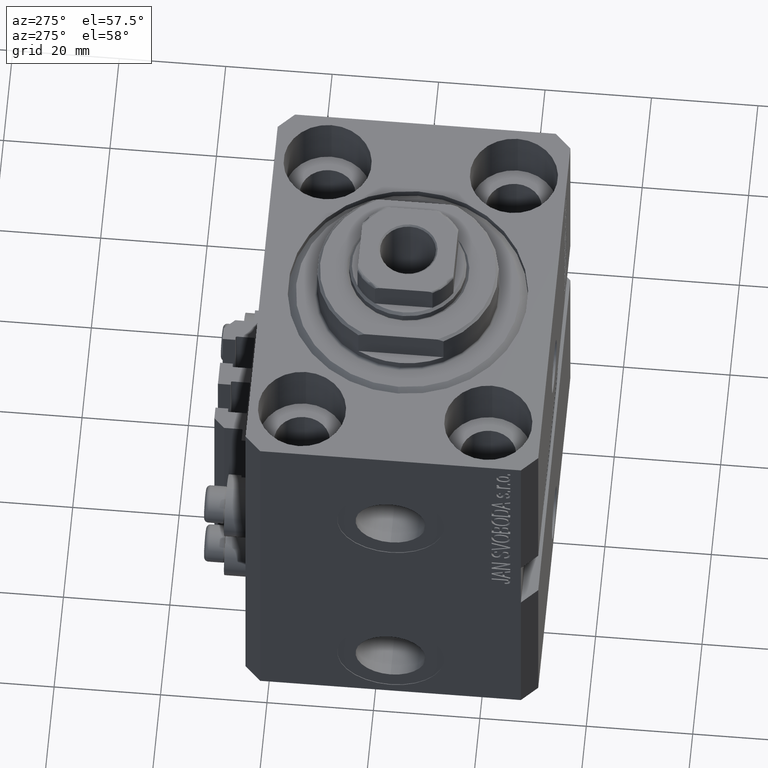
[diagram: clean part render]
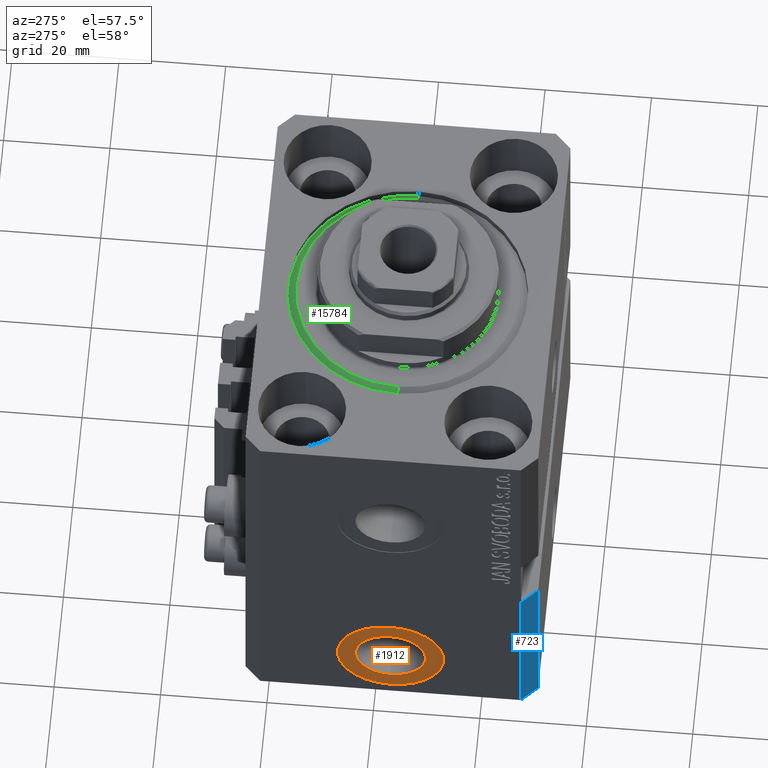
[diagram: same view with three faces highlighted in distinct colors, each labeled with its STEP entity id]
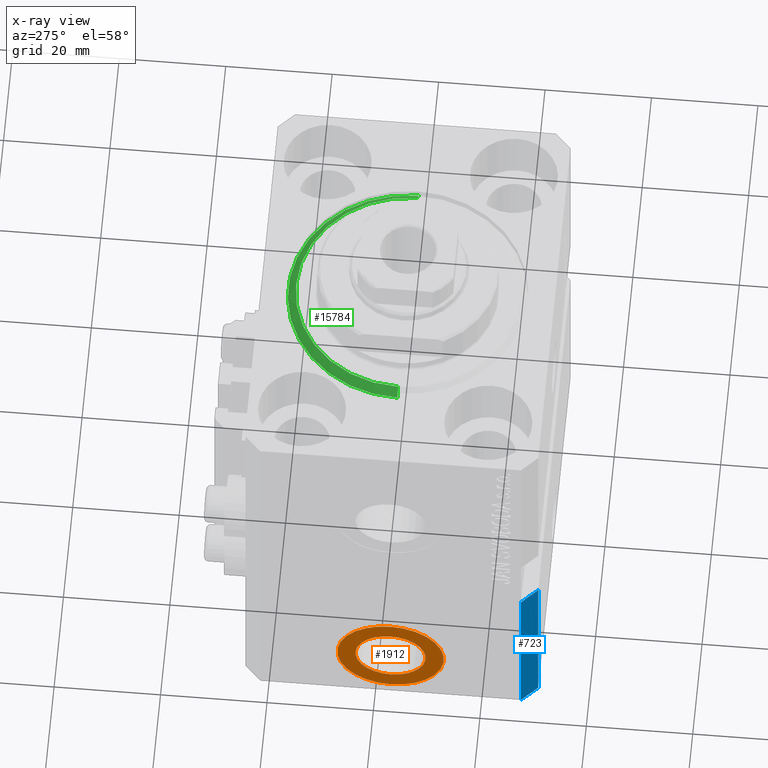
[diagram: x-ray of the same camera — body ghosted, the three highlighted faces saturated]
A machine part, auxiliary view with three faces highlighted in distinct colors.
The next image is the same camera in x-ray (body ghosted, the three faces saturated) — at least one of them is partly hidden behind the body in this view.
Their STEP definitions:

[orange] entity #1912 — the highlighted planar face has unit normal (-1, 0, 0).
#1368 = EDGE_CURVE ( 'NONE', #37670, #16966, #34739, .T. ) ;
#1673 = ORIENTED_EDGE ( 'NONE', *, *, #1368, .T. ) ;
#1912 = ADVANCED_FACE ( 'NONE', ( #27520, #41976 ), #42667, .T. ) ;
#5345 = AXIS2_PLACEMENT_3D ( 'NONE', #38890, #6460, #39116 ) ;
#5402 = CARTESIAN_POINT ( 'NONE',  ( -37.39999999999999147, -7.102951435054649637E-15, -78.00000000000000000 ) ) ;
#6460 = DIRECTION ( 'NONE',  ( -1.000000000000000000, 0.000000000000000000, 0.000000000000000000 ) ) ;
#10215 = DIRECTION ( 'NONE',  ( -1.000000000000000000, 0.000000000000000000, 0.000000000000000000 ) ) ;
#10243 = EDGE_CURVE ( 'NONE', #28677, #27141, #45432, .T. ) ;
#12095 = CIRCLE ( 'NONE', #46152, 9.999999999999994671 ) ;
#12423 = CARTESIAN_POINT ( 'NONE',  ( -37.39999999999999147, -7.521780640363043654E-15, -74.58000000000001251 ) ) ;
#13214 = CARTESIAN_POINT ( 'NONE',  ( -37.39999999999999147, -8.327598234202001119E-15, -61.42000000000000171 ) ) ;
#13764 = CARTESIAN_POINT ( 'NONE',  ( -37.39999999999999147, -8.327598234202001119E-15, -68.00000000000000000 ) ) ;
#14462 = DIRECTION ( 'NONE',  ( 0.000000000000000000, 0.000000000000000000, 1.000000000000000000 ) ) ;
#16966 = VERTEX_POINT ( 'NONE', #5402 ) ;
#21105 = CARTESIAN_POINT ( 'NONE',  ( -37.39999999999999147, -8.327598234202001119E-15, -68.00000000000000000 ) ) ;
#22566 = EDGE_LOOP ( 'NONE', ( #36646, #36076 ) ) ;
#22657 = AXIS2_PLACEMENT_3D ( 'NONE', #28209, #45524, #42200 ) ;
#23792 = EDGE_CURVE ( 'NONE', #27141, #28677, #26031, .T. ) ;
#24881 = DIRECTION ( 'NONE',  ( 0.000000000000000000, 0.000000000000000000, 1.000000000000000000 ) ) ;
#25098 = DIRECTION ( 'NONE',  ( -1.000000000000000000, 0.000000000000000000, 0.000000000000000000 ) ) ;
#25577 = DIRECTION ( 'NONE',  ( -1.000000000000000000, 0.000000000000000000, 0.000000000000000000 ) ) ;
#26031 = CIRCLE ( 'NONE', #32083, 6.580000000000002736 ) ;
#27141 = VERTEX_POINT ( 'NONE', #13214 ) ;
#27520 = FACE_BOUND ( 'NONE', #22566, .T. ) ;
#28209 = CARTESIAN_POINT ( 'NONE',  ( -37.39999999999999147, -8.327598234202001119E-15, -68.00000000000000000 ) ) ;
#28677 = VERTEX_POINT ( 'NONE', #12423 ) ;
#32083 = AXIS2_PLACEMENT_3D ( 'NONE', #46423, #25098, #46191 ) ;
#33686 = ORIENTED_EDGE ( 'NONE', *, *, #36262, .T. ) ;
#34415 = EDGE_LOOP ( 'NONE', ( #1673, #33686 ) ) ;
#34739 = CIRCLE ( 'NONE', #40782, 9.999999999999994671 ) ;
#36076 = ORIENTED_EDGE ( 'NONE', *, *, #10243, .F. ) ;
#36262 = EDGE_CURVE ( 'NONE', #16966, #37670, #12095, .T. ) ;
#36646 = ORIENTED_EDGE ( 'NONE', *, *, #23792, .F. ) ;
#37670 = VERTEX_POINT ( 'NONE', #44883 ) ;
#38890 = CARTESIAN_POINT ( 'NONE',  ( -37.39999999999999147, -8.327598234202001119E-15, -68.00000000000000000 ) ) ;
#39116 = DIRECTION ( 'NONE',  ( 0.000000000000000000, 0.000000000000000000, 1.000000000000000000 ) ) ;
#40782 = AXIS2_PLACEMENT_3D ( 'NONE', #21105, #25577, #24881 ) ;
#41976 = FACE_OUTER_BOUND ( 'NONE', #34415, .T. ) ;
#42200 = DIRECTION ( 'NONE',  ( 0.000000000000000000, 0.000000000000000000, 1.000000000000000000 ) ) ;
#42667 = PLANE ( 'NONE',  #22657 ) ;
#44883 = CARTESIAN_POINT ( 'NONE',  ( -37.39999999999999147, -8.327598234202001119E-15, -58.00000000000000711 ) ) ;
#45432 = CIRCLE ( 'NONE', #5345, 6.580000000000002736 ) ;
#45524 = DIRECTION ( 'NONE',  ( -1.000000000000000000, 0.000000000000000000, 0.000000000000000000 ) ) ;
#46152 = AXIS2_PLACEMENT_3D ( 'NONE', #13764, #10215, #14462 ) ;
#46191 = DIRECTION ( 'NONE',  ( 0.000000000000000000, 0.000000000000000000, 1.000000000000000000 ) ) ;
#46423 = CARTESIAN_POINT ( 'NONE',  ( -37.39999999999999147, -8.327598234202001119E-15, -68.00000000000000000 ) ) ;

[blue] entity #723 — the highlighted planar face has unit normal (-0.7071, -0.7071, 0).
#597 = CARTESIAN_POINT ( 'NONE',  ( -34.49999999999998579, -27.50000000000000000, -46.00000000000000000 ) ) ;
#723 = ADVANCED_FACE ( 'NONE', ( #4861 ), #44877, .T. ) ;
#1799 = CARTESIAN_POINT ( 'NONE',  ( -37.49999999999999289, -24.50000000000000000, -80.00000000000000000 ) ) ;
#2579 = CARTESIAN_POINT ( 'NONE',  ( -37.50000000000000000, -24.50000000000000000, -46.00000000000000000 ) ) ;
#4861 = FACE_OUTER_BOUND ( 'NONE', #29301, .T. ) ;
#5666 = VERTEX_POINT ( 'NONE', #597 ) ;
#6835 = VECTOR ( 'NONE', #29488, 1000.000000000000000 ) ;
#6983 = VECTOR ( 'NONE', #34448, 1000.000000000000000 ) ;
#7985 = ORIENTED_EDGE ( 'NONE', *, *, #38792, .F. ) ;
#8235 = ORIENTED_EDGE ( 'NONE', *, *, #14561, .F. ) ;
#9406 = LINE ( 'NONE', #31402, #45574 ) ;
#9965 = VERTEX_POINT ( 'NONE', #24955 ) ;
#11042 = CARTESIAN_POINT ( 'NONE',  ( -37.49999999999999289, -24.50000000000000000, -80.00000000000000000 ) ) ;
#14561 = EDGE_CURVE ( 'NONE', #20792, #5666, #20022, .T. ) ;
#18388 = LINE ( 'NONE', #11042, #6835 ) ;
#20022 = LINE ( 'NONE', #23323, #6983 ) ;
#20037 = CARTESIAN_POINT ( 'NONE',  ( -37.49999999999999289, -24.50000000000000000, -80.00000000000000000 ) ) ;
#20792 = VERTEX_POINT ( 'NONE', #2579 ) ;
#23323 = CARTESIAN_POINT ( 'NONE',  ( -37.49999999999999289, -24.50000000000000000, -46.00000000000000000 ) ) ;
#23844 = DIRECTION ( 'NONE',  ( 0.000000000000000000, 0.000000000000000000, 1.000000000000000000 ) ) ;
#24955 = CARTESIAN_POINT ( 'NONE',  ( -34.49999999999998579, -27.49999999999999645, -80.00000000000000000 ) ) ;
#26145 = CARTESIAN_POINT ( 'NONE',  ( -37.49999999999999289, -24.50000000000000000, -80.00000000000000000 ) ) ;
#27405 = ORIENTED_EDGE ( 'NONE', *, *, #41165, .T. ) ;
#29301 = EDGE_LOOP ( 'NONE', ( #8235, #7985, #27405, #30268 ) ) ;
#29488 = DIRECTION ( 'NONE',  ( 0.7071067811865483499, -0.7071067811865466846, 0.000000000000000000 ) ) ;
#30268 = ORIENTED_EDGE ( 'NONE', *, *, #44848, .T. ) ;
#31402 = CARTESIAN_POINT ( 'NONE',  ( -34.49999999999998579, -27.49999999999999645, -80.00000000000000000 ) ) ;
#33494 = DIRECTION ( 'NONE',  ( -0.7071067811865466846, -0.7071067811865483499, 0.000000000000000000 ) ) ;
#33733 = DIRECTION ( 'NONE',  ( 0.7071067811865483499, -0.7071067811865466846, 0.000000000000000000 ) ) ;
#34227 = DIRECTION ( 'NONE',  ( 0.000000000000000000, 0.000000000000000000, 1.000000000000000000 ) ) ;
#34448 = DIRECTION ( 'NONE',  ( 0.7071067811865483499, -0.7071067811865466846, 0.000000000000000000 ) ) ;
#36998 = VECTOR ( 'NONE', #34227, 1000.000000000000000 ) ;
#38792 = EDGE_CURVE ( 'NONE', #46186, #20792, #45355, .T. ) ;
#41165 = EDGE_CURVE ( 'NONE', #46186, #9965, #18388, .T. ) ;
#43820 = AXIS2_PLACEMENT_3D ( 'NONE', #26145, #33494, #33733 ) ;
#44848 = EDGE_CURVE ( 'NONE', #9965, #5666, #9406, .T. ) ;
#44877 = PLANE ( 'NONE',  #43820 ) ;
#45355 = LINE ( 'NONE', #20037, #36998 ) ;
#45574 = VECTOR ( 'NONE', #23844, 1000.000000000000000 ) ;
#46186 = VERTEX_POINT ( 'NONE', #1799 ) ;

[green] entity #15784 — the highlighted conical surface has half-angle 45 deg.
#250 = VECTOR ( 'NONE', #24658, 1000.000000000000114 ) ;
#252 = EDGE_LOOP ( 'NONE', ( #19781, #29205, #7958, #28299 ) ) ;
#935 = DIRECTION ( 'NONE',  ( 1.000000000000000000, 0.000000000000000000, 0.000000000000000000 ) ) ;
#2849 = VERTEX_POINT ( 'NONE', #3826 ) ;
#3591 = LINE ( 'NONE', #17562, #250 ) ;
#3826 = CARTESIAN_POINT ( 'NONE',  ( -22.50000000000000355, 0.000000000000000000, 1.500000000000001332 ) ) ;
#4141 = EDGE_CURVE ( 'NONE', #25463, #2849, #45430, .T. ) ;
#5644 = VERTEX_POINT ( 'NONE', #9628 ) ;
#5715 = DIRECTION ( 'NONE',  ( 1.000000000000000000, 0.000000000000000000, 0.000000000000000000 ) ) ;
#6699 = CARTESIAN_POINT ( 'NONE',  ( -22.50000000000000355, 2.755455298081545172E-15, 1.500000000000001332 ) ) ;
#7958 = ORIENTED_EDGE ( 'NONE', *, *, #4141, .F. ) ;
#8049 = DIRECTION ( 'NONE',  ( -0.000000000000000000, -0.000000000000000000, 1.000000000000000000 ) ) ;
#9628 = CARTESIAN_POINT ( 'NONE',  ( 20.99999999999998934, 0.000000000000000000, 0.000000000000000000 ) ) ;
#11136 = FACE_OUTER_BOUND ( 'NONE', #252, .T. ) ;
#13073 = AXIS2_PLACEMENT_3D ( 'NONE', #22031, #8049, #39792 ) ;
#15784 = ADVANCED_FACE ( 'NONE', ( #11136 ), #28207, .T. ) ;
#15952 = AXIS2_PLACEMENT_3D ( 'NONE', #40003, #29113, #935 ) ;
#17266 = AXIS2_PLACEMENT_3D ( 'NONE', #23930, #43024, #5715 ) ;
#17562 = CARTESIAN_POINT ( 'NONE',  ( 22.50000000000000355, 0.000000000000000000, 1.500000000000001332 ) ) ;
#19781 = ORIENTED_EDGE ( 'NONE', *, *, #32164, .F. ) ;
#22031 = CARTESIAN_POINT ( 'NONE',  ( 0.000000000000000000, 0.000000000000000000, 1.500000000000001332 ) ) ;
#22841 = CARTESIAN_POINT ( 'NONE',  ( 22.50000000000000355, 2.755455298081545172E-15, 1.500000000000001332 ) ) ;
#23930 = CARTESIAN_POINT ( 'NONE',  ( 0.000000000000000000, 0.000000000000000000, 0.000000000000000000 ) ) ;
#24463 = EDGE_CURVE ( 'NONE', #29489, #2849, #38911, .T. ) ;
#24658 = DIRECTION ( 'NONE',  ( 0.7071067811865500152, 0.000000000000000000, 0.7071067811865451302 ) ) ;
#24688 = DIRECTION ( 'NONE',  ( -0.7071067811865500152, 8.659560562354963673E-17, 0.7071067811865451302 ) ) ;
#25463 = VERTEX_POINT ( 'NONE', #22841 ) ;
#26061 = VECTOR ( 'NONE', #24688, 1000.000000000000114 ) ;
#28207 = CONICAL_SURFACE ( 'NONE', #13073, 22.50000000000000355, 0.7853981633974517207 ) ;
#28299 = ORIENTED_EDGE ( 'NONE', *, *, #46663, .F. ) ;
#29113 = DIRECTION ( 'NONE',  ( -0.000000000000000000, -0.000000000000000000, 1.000000000000000000 ) ) ;
#29205 = ORIENTED_EDGE ( 'NONE', *, *, #24463, .T. ) ;
#29489 = VERTEX_POINT ( 'NONE', #33072 ) ;
#32164 = EDGE_CURVE ( 'NONE', #29489, #5644, #43618, .T. ) ;
#33072 = CARTESIAN_POINT ( 'NONE',  ( -20.99999999999998934, 2.663606788145492628E-15, 0.000000000000000000 ) ) ;
#38911 = LINE ( 'NONE', #6699, #26061 ) ;
#39792 = DIRECTION ( 'NONE',  ( 1.000000000000000000, 0.000000000000000000, 0.000000000000000000 ) ) ;
#40003 = CARTESIAN_POINT ( 'NONE',  ( 0.000000000000000000, 0.000000000000000000, 1.500000000000001332 ) ) ;
#43024 = DIRECTION ( 'NONE',  ( -0.000000000000000000, -0.000000000000000000, -1.000000000000000000 ) ) ;
#43618 = CIRCLE ( 'NONE', #17266, 20.99999999999998934 ) ;
#45430 = CIRCLE ( 'NONE', #15952, 22.50000000000000355 ) ;
#46663 = EDGE_CURVE ( 'NONE', #5644, #25463, #3591, .T. ) ;